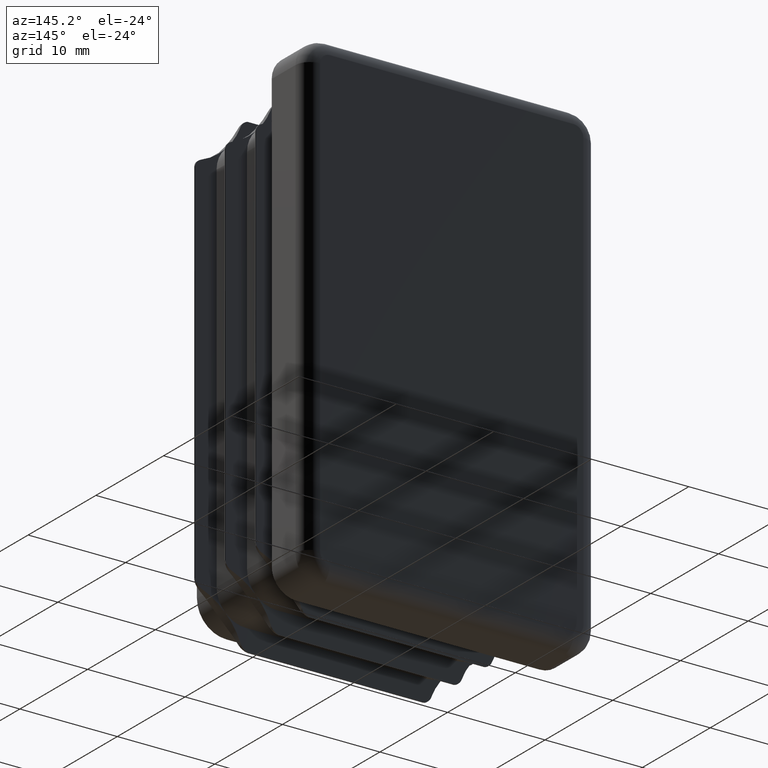
[diagram: clean part render]
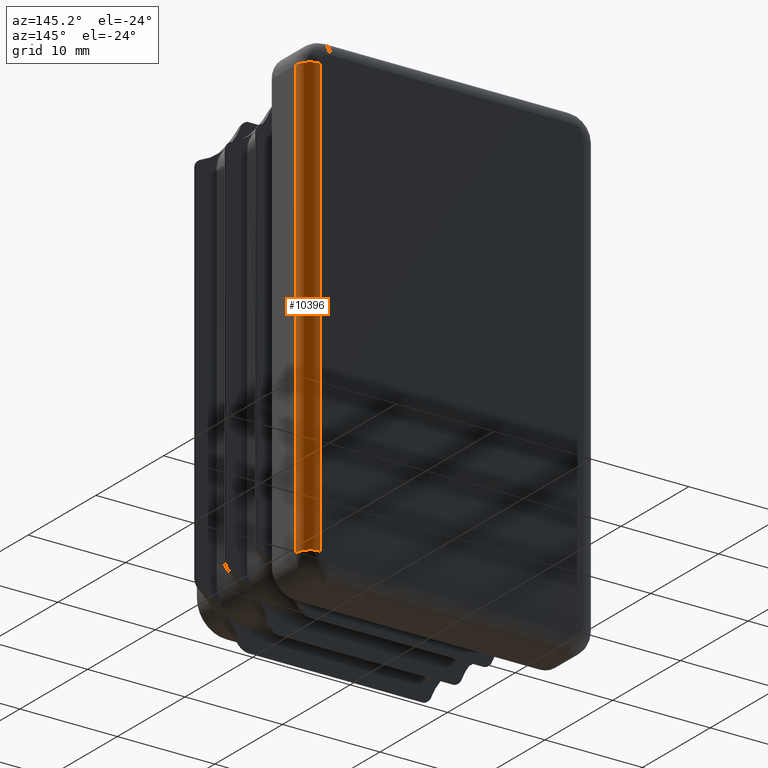
[diagram: same view with one face highlighted and labeled with its STEP entity id]
A machine part, auxiliary view. The second image highlights one B-rep face of the part: STEP entity #10396.
In plain terms, the highlighted cylindrical surface (edge-blend (fillet) strip) has radius 1.5 mm, axis along (0, -0, 1).
Its self-contained STEP definition (entity closure, byte-faithful):
#63 = VERTEX_POINT ( 'NONE', #15449 ) ;
#304 = EDGE_LOOP ( 'NONE', ( #1397, #15930, #19624, #5678 ) ) ;
#498 = VERTEX_POINT ( 'NONE', #6552 ) ;
#958 = DIRECTION ( 'NONE',  ( 0.000000000000000000, -0.000000000000000000, 1.000000000000000000 ) ) ;
#1397 = ORIENTED_EDGE ( 'NONE', *, *, #13522, .T. ) ;
#1714 = CARTESIAN_POINT ( 'NONE',  ( 13.50000000000000533, 3.500000000000000000, -1.405126015541214141E-15 ) ) ;
#2576 = AXIS2_PLACEMENT_3D ( 'NONE', #1714, #14113, #18734 ) ;
#2765 = EDGE_CURVE ( 'NONE', #13783, #498, #9387, .T. ) ;
#3767 = VECTOR ( 'NONE', #5502, 1000.000000000000000 ) ;
#3987 = VECTOR ( 'NONE', #6668, 1000.000000000000000 ) ;
#4385 = CIRCLE ( 'NONE', #12975, 1.499999999999999556 ) ;
#4695 = EDGE_CURVE ( 'NONE', #498, #63, #8121, .T. ) ;
#5502 = DIRECTION ( 'NONE',  ( 1.040834085586084257E-16, -0.000000000000000000, 1.000000000000000000 ) ) ;
#5678 = ORIENTED_EDGE ( 'NONE', *, *, #11025, .F. ) ;
#6552 = CARTESIAN_POINT ( 'NONE',  ( 13.50000000000000888, 5.000000000000000000, 22.50000000000000000 ) ) ;
#6668 = DIRECTION ( 'NONE',  ( -1.040834085586084257E-16, 0.000000000000000000, -1.000000000000000000 ) ) ;
#7696 = CYLINDRICAL_SURFACE ( 'NONE', #2576, 1.499999999999999556 ) ;
#8099 = CARTESIAN_POINT ( 'NONE',  ( 13.50000000000000355, 5.000000000000000000, -22.50000000000000355 ) ) ;
#8121 = LINE ( 'NONE', #8099, #3987 ) ;
#8310 = CARTESIAN_POINT ( 'NONE',  ( 15.00000000000000711, 3.500000000000000000, 22.50000000000000000 ) ) ;
#9387 = CIRCLE ( 'NONE', #14596, 1.499999999999999556 ) ;
#10236 = CARTESIAN_POINT ( 'NONE',  ( 13.50000000000000000, 3.500000000000000000, -22.50000000000000355 ) ) ;
#10396 = ADVANCED_FACE ( 'NONE', ( #12018 ), #7696, .T. ) ;
#10517 = DIRECTION ( 'NONE',  ( 0.000000000000000000, 0.000000000000000000, 1.000000000000000000 ) ) ;
#11025 = EDGE_CURVE ( 'NONE', #16236, #13783, #12964, .T. ) ;
#11778 = DIRECTION ( 'NONE',  ( 1.000000000000000000, 0.000000000000000000, 0.000000000000000000 ) ) ;
#12018 = FACE_OUTER_BOUND ( 'NONE', #304, .T. ) ;
#12964 = LINE ( 'NONE', #13140, #3767 ) ;
#12975 = AXIS2_PLACEMENT_3D ( 'NONE', #10236, #958, #11778 ) ;
#13140 = CARTESIAN_POINT ( 'NONE',  ( 15.00000000000000711, 3.500000000000000000, 22.50000000000000000 ) ) ;
#13522 = EDGE_CURVE ( 'NONE', #16236, #63, #4385, .T. ) ;
#13783 = VERTEX_POINT ( 'NONE', #8310 ) ;
#13819 = DIRECTION ( 'NONE',  ( 1.000000000000000000, 0.000000000000000000, 0.000000000000000000 ) ) ;
#14029 = CARTESIAN_POINT ( 'NONE',  ( 15.00000000000000178, 3.500000000000000000, -22.50000000000000355 ) ) ;
#14113 = DIRECTION ( 'NONE',  ( 1.040834085586084257E-16, -0.000000000000000000, 1.000000000000000000 ) ) ;
#14596 = AXIS2_PLACEMENT_3D ( 'NONE', #15112, #10517, #13819 ) ;
#15112 = CARTESIAN_POINT ( 'NONE',  ( 13.50000000000000711, 3.500000000000000000, 22.50000000000000000 ) ) ;
#15449 = CARTESIAN_POINT ( 'NONE',  ( 13.50000000000000355, 5.000000000000000000, -22.50000000000000355 ) ) ;
#15930 = ORIENTED_EDGE ( 'NONE', *, *, #4695, .F. ) ;
#16236 = VERTEX_POINT ( 'NONE', #14029 ) ;
#18734 = DIRECTION ( 'NONE',  ( 1.000000000000000000, 0.000000000000000000, -1.040834085586084257E-16 ) ) ;
#19624 = ORIENTED_EDGE ( 'NONE', *, *, #2765, .F. ) ;